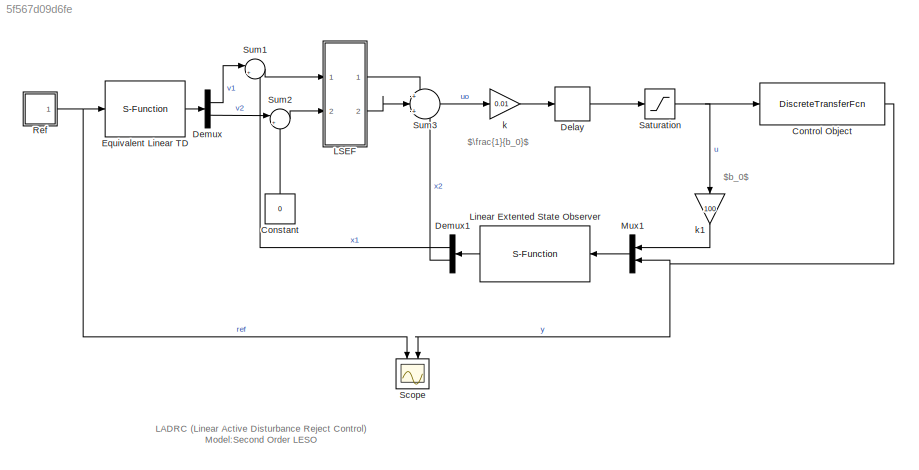
MODEL slx_5f567d09d6fe
KIND model
CONFIG AbsTol = auto
CONFIG EnableMultiTasking = off
CONFIG FixedStep = auto
CONFIG MaxStep = auto
CONFIG MinStep = auto
CONFIG RelTol = 1e-3
CONFIG SampleTimeConstraint = Unconstrained
CONFIG Solver = VariableStepAuto
CONFIG SolverName = VariableStepAuto
CONFIG StartTime = 0.0
CONFIG StopTime = 10.0
BLOCK [Constant] Constant
  Value = 0
BLOCK [DiscreteTransferFcn] Control Object
  Denominator = [ 1.0000   -0.9990]
  InputPortMap = u0
  Numerator = [0    0.03357]
  Ports = [1, 1]
  SampleTime = 1e-3
BLOCK [Delay] Delay
  InputPortMap = u0
  Ports = [1, 1]
BLOCK [Demux] Demux
  DisplayOption = bar
  Outputs = 2
  Ports = [1, 2]
BLOCK [Demux] Demux1
  DisplayOption = bar
  Outputs = 2
  Ports = [1, 2]
BLOCK [S-Function] Equivalent Linear TD
  EnableBusSupport = off
  FunctionName = ELTD
  Parameters = 4,4,100
  Ports = [1, 1]
  SFcnIsStateOwnerBlock = off
  SFunctionDeploymentMode = off
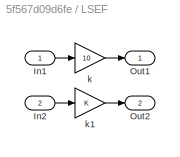
BLOCK [SubSystem] LSEF
  Ports = [2, 2]
  RequestExecContextInheritance = off
BLOCK [Inport] LSEF/In1
  IconDisplay = Port number
BLOCK [Inport] LSEF/In2
  IconDisplay = Port number
  Port = 2
BLOCK [Outport] LSEF/Out1
  IconDisplay = Port number
BLOCK [Outport] LSEF/Out2
  IconDisplay = Port number
  Port = 2
BLOCK [Gain] LSEF/k
  Gain = 10
  OutDataTypeStr = Inherit: Inherit via internal rule
  ParamDataTypeStr = Inherit: Inherit via internal rule
  SaturateOnIntegerOverflow = off
BLOCK [Gain] LSEF/k1
  OutDataTypeStr = Inherit: Inherit via internal rule
  ParamDataTypeStr = Inherit: Inherit via internal rule
  SaturateOnIntegerOverflow = off
BLOCK [S-Function] Linear Extented State Observer
  EnableBusSupport = off
  FunctionName = LESO
  Parameters = 50
  Ports = [1, 1]
  SFcnIsStateOwnerBlock = off
  SFunctionDeploymentMode = off
BLOCK [Mux] Mux1
  DisplayOption = bar
  Inputs = 2
  Ports = [2, 1]
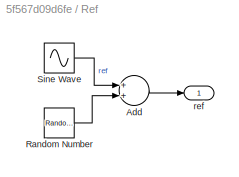
BLOCK [SubSystem] Ref
  Ports = [0, 1]
  RequestExecContextInheritance = off
BLOCK [Sum] Ref/Add
  InputSameDT = off
  OutDataTypeStr = Inherit: Inherit via internal rule
  Ports = [2, 1]
  SaturateOnIntegerOverflow = off
BLOCK [RandomNumber] Ref/Random Number
  SampleTime = 1e-2
  Variance = 0.01
BLOCK [Sin] Ref/Sine Wave
  Frequency = 6.28
  Ports = [0, 1]
  SampleTime = 1e-3
BLOCK [Outport] Ref/ref
  IconDisplay = Port number
BLOCK [Saturate] Saturation
  InputPortMap = u0
  LowerLimit = -1e4
  Ports = [1, 1]
  UpperLimit = 1e4
BLOCK [Scope] Scope
  Floating = off
  NumInputPorts = 2
  Ports = [2]
  ScopeSpecificationString = Simulink.scopes.TimeScopeBlockCfg('CurrentConfiguration', extmgr.ConfigurationSet(extmgr.Configuration('Core','General UI',true),extmgr.Configuration('Core','Source UI',true),extmgr.Configuration('Sources','WiredSimulink',true),extmgr.Configuration('Visuals','Time Domain',true,'SerializedDisplays',{struct('MinYLimReal','-41961.41538','MaxYLimReal','377642.73845','YLabelReal','','MinYLimMag','   0....<+1432ch>
BLOCK [Sum] Sum1
  IconShape = round
  InputSameDT = off
  Inputs = |+-
  OutDataTypeStr = Inherit: Inherit via internal rule
  Ports = [2, 1]
  SaturateOnIntegerOverflow = off
BLOCK [Sum] Sum2
  IconShape = round
  InputSameDT = off
  Inputs = |+-
  OutDataTypeStr = Inherit: Inherit via internal rule
  Ports = [2, 1]
  SaturateOnIntegerOverflow = off
BLOCK [Sum] Sum3
  IconShape = round
  InputSameDT = off
  Inputs = +|+|-
  OutDataTypeStr = Inherit: Inherit via internal rule
  Ports = [3, 1]
  SaturateOnIntegerOverflow = off
BLOCK [Gain] k
  Gain = 0.01
  OutDataTypeStr = Inherit: Inherit via internal rule
  ParamDataTypeStr = Inherit: Inherit via internal rule
  SaturateOnIntegerOverflow = off
BLOCK [Gain] k1
  Gain = 100
  OutDataTypeStr = Inherit: Inherit via internal rule
  ParamDataTypeStr = Inherit: Inherit via internal rule
  SaturateOnIntegerOverflow = off
ANNOTATION (root): LADRC (Linear Active Disturbance Reject Control) Model:Second Order LESO
ANNOTATION (root): $b_0$
ANNOTATION (root): $\frac{1}{b_0}$
LINE Constant:1 -> Sum2:2
NET Control Object:1 -> Mux1:2, Scope:2
LINE Delay:1 -> Saturation:1
LINE Demux1:1 -> Sum1:2
LINE Demux1:2 -> Sum3:3
LINE Demux:1 -> Sum1:1
LINE Demux:2 -> Sum2:1
LINE Equivalent Linear TD:1 -> Demux:1
LINE LSEF/In1:1 -> LSEF/k:1
LINE LSEF/In2:1 -> LSEF/k1:1
LINE LSEF/k1:1 -> LSEF/Out2:1
LINE LSEF/k:1 -> LSEF/Out1:1
LINE LSEF:1 -> Sum3:1
LINE LSEF:2 -> Sum3:2
LINE Linear Extented State Observer:1 -> Demux1:1
LINE Mux1:1 -> Linear Extented State Observer:1
LINE Ref/Add:1 -> Ref/ref:1
LINE Ref/Random Number:1 -> Ref/Add:2
LINE Ref/Sine Wave:1 -> Ref/Add:1
NET Ref:1 -> Equivalent Linear TD:1, Scope:1
NET Saturation:1 -> Control Object:1, k1:1
LINE Sum1:1 -> LSEF:1
LINE Sum2:1 -> LSEF:2
LINE Sum3:1 -> k:1
LINE k1:1 -> Mux1:1
LINE k:1 -> Delay:1
note: NET lines group one-source signal fan-out (src -> all destinations, sorted); 1:1 wires keep LINE
